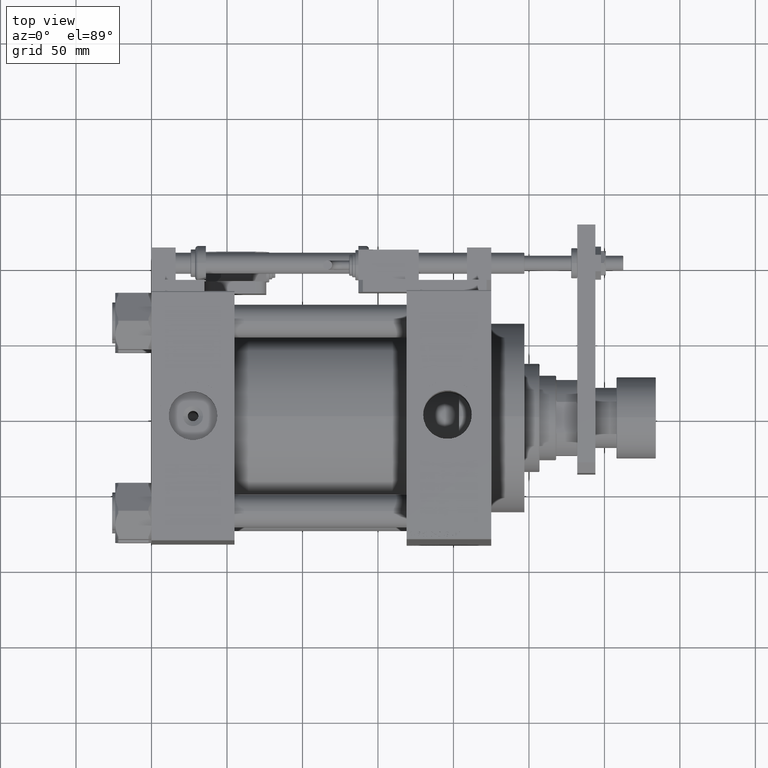
[diagram: clean part render]
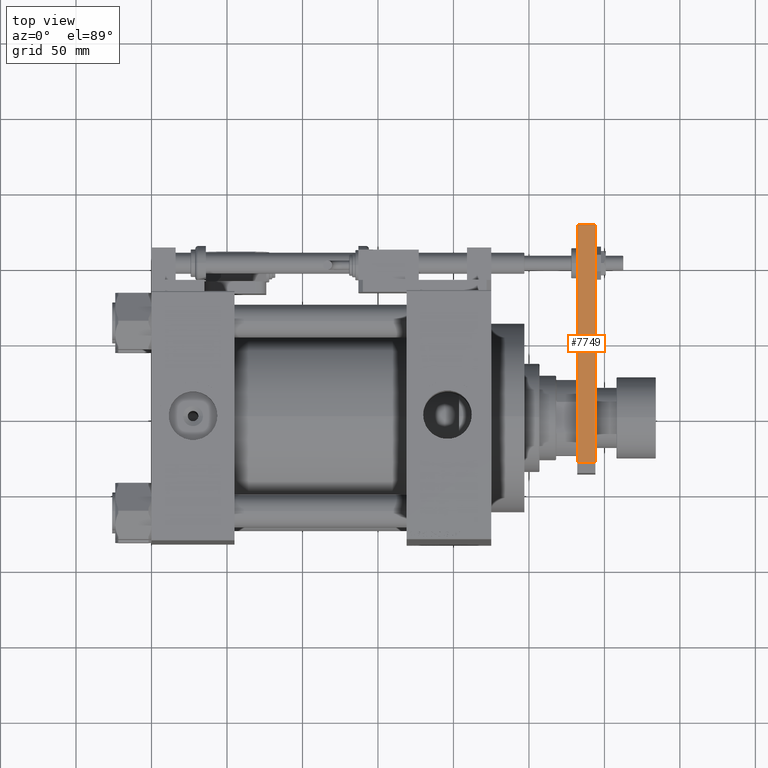
[diagram: same view with one face highlighted and labeled with its STEP entity id]
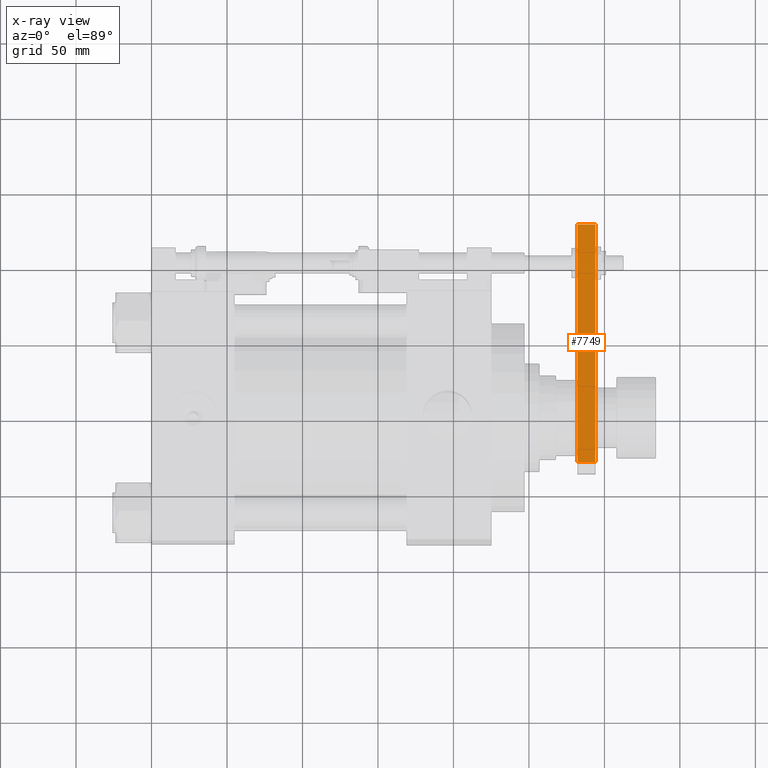
[diagram: x-ray of the same camera — body ghosted, the highlighted face saturated]
A machine part, top view. The second image highlights one B-rep face of the part: STEP entity #7749.
The next image is the same camera in x-ray: the body ghosted, the highlighted face saturated — about 0% of this face is hidden behind the body in this view.
In plain terms, the highlighted planar face has unit normal (-0, -0, -1).
Its self-contained STEP definition (entity closure, byte-faithful):
#433 = AXIS2_PLACEMENT_3D ( 'NONE', #35865, #53006, #39949 ) ;
#1647 = EDGE_CURVE ( 'NONE', #21234, #35540, #10950, .T. ) ;
#2891 = PLANE ( 'NONE',  #433 ) ;
#2916 = EDGE_LOOP ( 'NONE', ( #15023, #53157, #51355, #17445 ) ) ;
#3533 = CARTESIAN_POINT ( 'NONE',  ( 37.50000000000002132, 0.000000000000000000, 0.000000000000000000 ) ) ;
#7749 = ADVANCED_FACE ( 'NONE', ( #48130 ), #2891, .F. ) ;
#8544 = CARTESIAN_POINT ( 'NONE',  ( 37.49999999999999289, 164.5000000000000284, 12.00000000000000000 ) ) ;
#10950 = LINE ( 'NONE', #3533, #40442 ) ;
#13418 = DIRECTION ( 'NONE',  ( 0.000000000000000000, 0.000000000000000000, -1.000000000000000000 ) ) ;
#14295 = EDGE_CURVE ( 'NONE', #33400, #21234, #50710, .T. ) ;
#15023 = ORIENTED_EDGE ( 'NONE', *, *, #42331, .F. ) ;
#16396 = VECTOR ( 'NONE', #13418, 1000.000000000000000 ) ;
#17445 = ORIENTED_EDGE ( 'NONE', *, *, #21860, .F. ) ;
#19049 = CARTESIAN_POINT ( 'NONE',  ( 37.50000000000002132, 0.000000000000000000, 12.00000000000000000 ) ) ;
#19293 = CARTESIAN_POINT ( 'NONE',  ( 37.50000000000002132, 7.000000000000006217, 0.000000000000000000 ) ) ;
#20047 = VECTOR ( 'NONE', #41760, 1000.000000000000000 ) ;
#21234 = VERTEX_POINT ( 'NONE', #19293 ) ;
#21860 = EDGE_CURVE ( 'NONE', #33290, #35540, #51521, .T. ) ;
#27010 = CARTESIAN_POINT ( 'NONE',  ( 37.49999999999999289, 164.5000000000000284, 0.000000000000000000 ) ) ;
#31068 = CARTESIAN_POINT ( 'NONE',  ( 37.50000000000002132, 7.000000000000006217, 12.00000000000000000 ) ) ;
#32686 = DIRECTION ( 'NONE',  ( -1.687269034384736001E-16, 1.000000000000000000, 0.000000000000000000 ) ) ;
#33290 = VERTEX_POINT ( 'NONE', #52423 ) ;
#33400 = VERTEX_POINT ( 'NONE', #31068 ) ;
#35540 = VERTEX_POINT ( 'NONE', #27010 ) ;
#35653 = DIRECTION ( 'NONE',  ( -1.687269034384736001E-16, 1.000000000000000000, 0.000000000000000000 ) ) ;
#35865 = CARTESIAN_POINT ( 'NONE',  ( 37.50000000000002132, 0.000000000000000000, 12.00000000000000000 ) ) ;
#35903 = LINE ( 'NONE', #19049, #52734 ) ;
#39949 = DIRECTION ( 'NONE',  ( 1.687269034384736001E-16, -1.000000000000000000, 0.000000000000000000 ) ) ;
#40442 = VECTOR ( 'NONE', #32686, 1000.000000000000000 ) ;
#41760 = DIRECTION ( 'NONE',  ( -0.000000000000000000, -0.000000000000000000, -1.000000000000000000 ) ) ;
#42331 = EDGE_CURVE ( 'NONE', #33400, #33290, #35903, .T. ) ;
#48130 = FACE_OUTER_BOUND ( 'NONE', #2916, .T. ) ;
#50157 = CARTESIAN_POINT ( 'NONE',  ( 37.50000000000002132, 7.000000000000006217, 12.00000000000000000 ) ) ;
#50710 = LINE ( 'NONE', #50157, #16396 ) ;
#51355 = ORIENTED_EDGE ( 'NONE', *, *, #1647, .T. ) ;
#51521 = LINE ( 'NONE', #8544, #20047 ) ;
#52423 = CARTESIAN_POINT ( 'NONE',  ( 37.49999999999999289, 164.5000000000000284, 12.00000000000000000 ) ) ;
#52734 = VECTOR ( 'NONE', #35653, 1000.000000000000000 ) ;
#53006 = DIRECTION ( 'NONE',  ( -1.000000000000000000, -1.687269034384736001E-16, 0.000000000000000000 ) ) ;
#53157 = ORIENTED_EDGE ( 'NONE', *, *, #14295, .T. ) ;